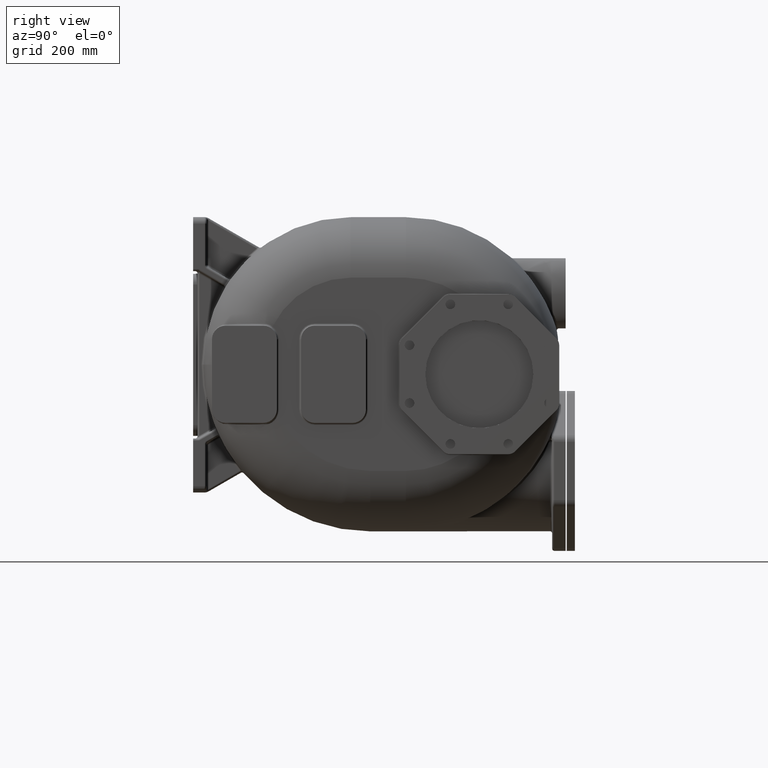
[diagram: clean part render]
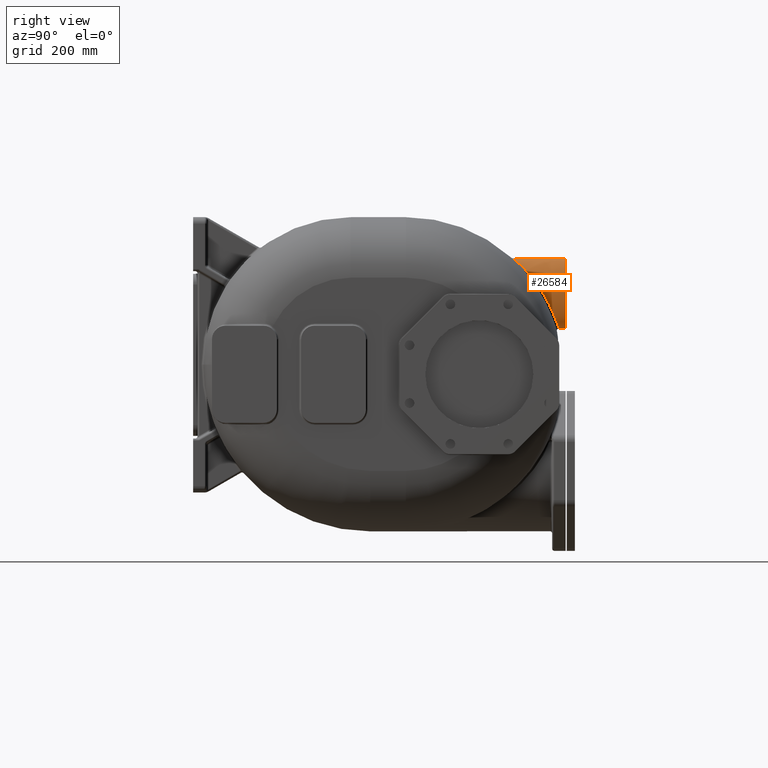
[diagram: same view with one face highlighted and labeled with its STEP entity id]
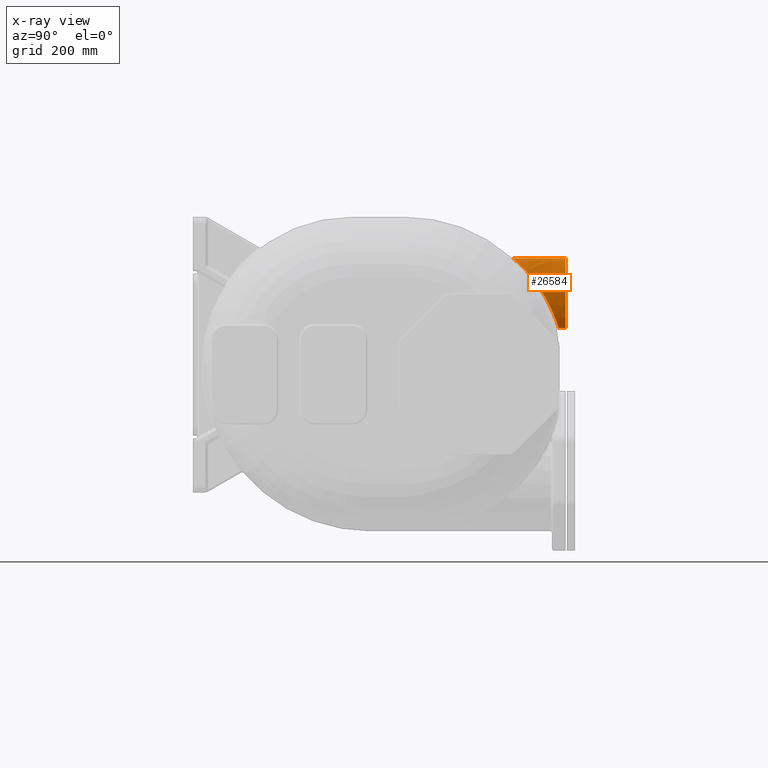
[diagram: x-ray of the same camera — body ghosted, the highlighted face saturated]
A machine part, right view. The second image highlights one B-rep face of the part: STEP entity #26584.
The next image is the same camera in x-ray: the body ghosted, the highlighted face saturated — about 0% of this face is hidden behind the body in this view.
In plain terms, the highlighted face is a SurfaceOfExtrusion surface.
Its self-contained STEP definition (entity closure, byte-faithful):
#6282=CARTESIAN_POINT('',(-5.E1,5.916461484573E2,1.79E2));
#6283=CARTESIAN_POINT('',(-4.990571273791E1,5.916462837173E2,1.789999647922E2));
#6284=CARTESIAN_POINT('',(-4.971701730871E1,5.916502673708E2,1.789980894169E2));
#6285=CARTESIAN_POINT('',(-4.943377895897E1,5.916624925480E2,1.789893849825E2));
#6286=CARTESIAN_POINT('',(-4.914990455443E1,5.916833913549E2,1.789748737566E2));
#6287=CARTESIAN_POINT('',(-4.886512752101E1,5.917123716773E2,1.789544562780E2));
#6288=CARTESIAN_POINT('',(-4.857915701108E1,5.917497232830E2,1.789280506253E2));
#6289=CARTESIAN_POINT('',(-4.829173066873E1,5.917955741219E2,1.788955405458E2));
#6290=CARTESIAN_POINT('',(-4.800263161878E1,5.918501564963E2,1.788567938878E2));
#6291=CARTESIAN_POINT('',(-4.771159619492E1,5.919137714649E2,1.788116564639E2));
#6292=CARTESIAN_POINT('',(-4.741713478509E1,5.919870594321E2,1.787597187068E2));
#6293=CARTESIAN_POINT('',(-4.711786523214E1,5.920706028898E2,1.787004547201E2));
#6294=CARTESIAN_POINT('',(-4.681247416151E1,5.921651730455E2,1.786332247347E2));
#6295=CARTESIAN_POINT('',(-4.650030078276E1,5.922714608112E2,1.785574245731E2));
#6296=CARTESIAN_POINT('',(-4.618084049427E1,5.923901802342E2,1.784724212794E2));
#6297=CARTESIAN_POINT('',(-4.585368907209E1,5.925220735724E2,1.783775463213E2));
#6298=CARTESIAN_POINT('',(-4.551853405633E1,5.926679034984E2,1.782721022961E2));
#6299=CARTESIAN_POINT('',(-4.517510727040E1,5.928284677718E2,1.781553531219E2));
#6300=CARTESIAN_POINT('',(-4.482327468989E1,5.930045517960E2,1.780265603864E2));
#6301=CARTESIAN_POINT('',(-4.446286686849E1,5.931969997030E2,1.778849333267E2));
#6302=CARTESIAN_POINT('',(-4.409348391735E1,5.934068974906E2,1.777295274850E2));
#6303=CARTESIAN_POINT('',(-4.371501330557E1,5.936351925336E2,1.775594605086E2));
#6304=CARTESIAN_POINT('',(-4.332613024958E1,5.938836265560E2,1.773732055069E2));
#6305=CARTESIAN_POINT('',(-4.292543875747E1,5.941541792571E2,1.771689806801E2));
#6306=CARTESIAN_POINT('',(-4.251184228156E1,5.944487909314E2,1.769449412690E2));
#6307=CARTESIAN_POINT('',(-4.208437053169E1,5.947694421579E2,1.766990961978E2));
#6308=CARTESIAN_POINT('',(-4.164290695417E1,5.951175281779E2,1.764297717692E2));
#6309=CARTESIAN_POINT('',(-4.118742591035E1,5.954942594304E2,1.761352444071E2));
#6310=CARTESIAN_POINT('',(-4.071814258638E1,5.959012827208E2,1.758138532702E2));
#6311=CARTESIAN_POINT('',(-4.023469497187E1,5.963406916841E2,1.754634332833E2));
#6312=CARTESIAN_POINT('',(-3.973636344056E1,5.968149919360E2,1.750813408204E2));
#6313=CARTESIAN_POINT('',(-3.922269402302E1,5.973264950006E2,1.746648744160E2));
#6314=CARTESIAN_POINT('',(-3.869352799123E1,5.978772221796E2,1.742113366256E2));
#6315=CARTESIAN_POINT('',(-3.814891254937E1,5.984687776472E2,1.737179928165E2));
#6316=CARTESIAN_POINT('',(-3.758906236896E1,5.991035037047E2,1.731820543215E2));
#6317=CARTESIAN_POINT('',(-3.701440152226E1,5.997834414920E2,1.726007474730E2));
#6318=CARTESIAN_POINT('',(-3.642528127160E1,6.005106707095E2,1.719710208506E2));
#6319=CARTESIAN_POINT('',(-3.582306455842E1,6.012857109218E2,1.712907420797E2));
#6320=CARTESIAN_POINT('',(-3.520978283656E1,6.021082496801E2,1.705586253624E2));
#6321=CARTESIAN_POINT('',(-3.458626548275E1,6.029798427901E2,1.697720197209E2));
#6322=CARTESIAN_POINT('',(-3.395287331186E1,6.039025028590E2,1.689274465488E2));
#6323=CARTESIAN_POINT('',(-3.331013041217E1,6.048778573100E2,1.680213202842E2));
#6324=CARTESIAN_POINT('',(-3.265891823350E1,6.059076440355E2,1.670502162959E2));
#6325=CARTESIAN_POINT('',(-3.200157898026E1,6.069912027341E2,1.660127869297E2));
#6326=CARTESIAN_POINT('',(-3.134015159865E1,6.081277738122E2,1.649073874935E2));
#6327=CARTESIAN_POINT('',(-3.067669566025E1,6.093167288323E2,1.637324612716E2));
#6328=CARTESIAN_POINT('',(-3.001375885394E1,6.105563552040E2,1.624874894688E2));
#6329=CARTESIAN_POINT('',(-2.935360592497E1,6.118448935895E2,1.611716888998E2));
#6330=CARTESIAN_POINT('',(-2.869871231770E1,6.131802640590E2,1.597849047401E2));
#6331=CARTESIAN_POINT('',(-2.805182802330E1,6.145592747840E2,1.583279643392E2));
#6332=CARTESIAN_POINT('',(-2.741540523555E1,6.159790213283E2,1.568014768200E2));
#6333=CARTESIAN_POINT('',(-2.679220950941E1,6.174356049357E2,1.552072916540E2));
#6334=CARTESIAN_POINT('',(-2.618473312298E1,6.189251586059E2,1.535472069064E2));
#6335=CARTESIAN_POINT('',(-2.559550497525E1,6.204434439246E2,1.518237531959E2));
#6336=CARTESIAN_POINT('',(-2.502687982936E1,6.219860356020E2,1.500397054482E2));
#6337=CARTESIAN_POINT('',(-2.448106770058E1,6.235485573466E2,1.481981452351E2));
#6338=CARTESIAN_POINT('',(-2.396012621654E1,6.251264714749E2,1.463024552784E2));
#6339=CARTESIAN_POINT('',(-2.346590772642E1,6.267154694559E2,1.443561104215E2));
#6340=CARTESIAN_POINT('',(-2.300010031443E1,6.283112368896E2,1.423627865965E2));
#6341=CARTESIAN_POINT('',(-2.256420129979E1,6.299096662458E2,1.403262254113E2));
#6342=CARTESIAN_POINT('',(-2.215951981001E1,6.315068888238E2,1.382501643482E2));
#6343=CARTESIAN_POINT('',(-2.178721461795E1,6.330991172706E2,1.361384648286E2));
#6344=CARTESIAN_POINT('',(-2.144826613089E1,6.346829223927E2,1.339949089002E2));
#6345=CARTESIAN_POINT('',(-2.114350300163E1,6.362550548931E2,1.318232354895E2));
#6346=CARTESIAN_POINT('',(-2.087363453505E1,6.378124002415E2,1.296273240644E2));
#6347=CARTESIAN_POINT('',(-2.063921589226E1,6.393522039177E2,1.274108772495E2));
#6348=CARTESIAN_POINT('',(-2.044068920960E1,6.408718274987E2,1.251776298656E2));
#6349=CARTESIAN_POINT('',(-2.027838928341E1,6.423687682103E2,1.229314579350E2));
#6350=CARTESIAN_POINT('',(-2.015251724774E1,6.438409054403E2,1.206759687307E2));
#6351=CARTESIAN_POINT('',(-2.006317668448E1,6.452862353476E2,1.184147826088E2));
#6352=CARTESIAN_POINT('',(-2.001037304800E1,6.467028504009E2,1.161516552268E2));
#6353=CARTESIAN_POINT('',(-1.999400345505E1,6.480891067603E2,1.138902398381E2));
#6354=CARTESIAN_POINT('',(-2.001386562825E1,6.494434991723E2,1.116341483104E2));
#6355=CARTESIAN_POINT('',(-2.006965246607E1,6.507645880322E2,1.093871335345E2));
#6356=CARTESIAN_POINT('',(-2.016094909924E1,6.520511669617E2,1.071528563947E2));
#6357=CARTESIAN_POINT('',(-2.028723770752E1,6.533021614855E2,1.049349166681E2));
#6358=CARTESIAN_POINT('',(-2.044787964406E1,6.545165568143E2,1.027370563344E2));
#6359=CARTESIAN_POINT('',(-2.064213322209E1,6.556935874686E2,1.005628117249E2));
#6360=CARTESIAN_POINT('',(-2.086913525489E1,6.568325338311E2,9.841578203148E1));
#6361=CARTESIAN_POINT('',(-2.112790193791E1,6.579328393147E2,9.629950837566E1));
#6362=CARTESIAN_POINT('',(-2.141734413459E1,6.589941054676E2,9.421736481708E1));
#6363=CARTESIAN_POINT('',(-2.173623144038E1,6.600159919565E2,9.217278949430E1));
#6364=CARTESIAN_POINT('',(-2.208325610961E1,6.609984113307E2,9.016885598528E1));
#6365=CARTESIAN_POINT('',(-2.245695504341E1,6.619412685156E2,8.820875544367E1));
#6366=CARTESIAN_POINT('',(-2.285582444688E1,6.628447729671E2,8.629516779178E1));
#6367=CARTESIAN_POINT('',(-2.327820251529E1,6.637090916362E2,8.443089355967E1));
#6368=CARTESIAN_POINT('',(-2.372242721610E1,6.645347113798E2,8.261812699888E1));
#6369=CARTESIAN_POINT('',(-2.418673191859E1,6.653221298767E2,8.085900365984E1));
#6370=CARTESIAN_POINT('',(-2.466930624925E1,6.660719957160E2,7.915533434759E1));
#6371=CARTESIAN_POINT('',(-2.516840139211E1,6.667851908709E2,7.750834456554E1));
#6372=CARTESIAN_POINT('',(-2.568210070936E1,6.674624617849E2,7.591947144526E1));
#6373=CARTESIAN_POINT('',(-2.620868857848E1,6.681049295314E2,7.438921498388E1));
#6374=CARTESIAN_POINT('',(-2.674641236900E1,6.687136742875E2,7.291801651682E1));
#6375=CARTESIAN_POINT('',(-2.729345916432E1,6.692897328472E2,7.150626530630E1));
#6376=CARTESIAN_POINT('',(-2.784829279899E1,6.698344411799E2,7.015349409531E1));
#6377=CARTESIAN_POINT('',(-2.840932220760E1,6.703490186246E2,6.885932734793E1));
#6378=CARTESIAN_POINT('',(-2.897495764678E1,6.708346393619E2,6.762329033228E1));
#6379=CARTESIAN_POINT('',(-2.954389986861E1,6.712926832362E2,6.644424043789E1));
#6380=CARTESIAN_POINT('',(-3.011484335091E1,6.717244322467E2,6.532109002641E1));
#6381=CARTESIAN_POINT('',(-3.068647532397E1,6.721310656704E2,6.425276416902E1));
#6382=CARTESIAN_POINT('',(-3.125778912395E1,6.725139143545E2,6.323765032836E1));
#6383=CARTESIAN_POINT('',(-3.182784030326E1,6.728742507512E2,6.227412677268E1));
#6384=CARTESIAN_POINT('',(-3.239569037517E1,6.732132233864E2,6.136064100045E1));
#6385=CARTESIAN_POINT('',(-3.296054173653E1,6.735319837199E2,6.049549142185E1));
#6386=CARTESIAN_POINT('',(-3.352172125380E1,6.738316678498E2,5.967688757239E1));
#6387=CARTESIAN_POINT('',(-3.407862180932E1,6.741133475001E2,5.890305292822E1));
#6388=CARTESIAN_POINT('',(-3.463066497333E1,6.743779958777E2,5.817227155930E1));
#6389=CARTESIAN_POINT('',(-3.517744200910E1,6.746266016179E2,5.748270676778E1));
#6390=CARTESIAN_POINT('',(-3.571863944017E1,6.748601182039E2,5.683252581602E1));
#6391=CARTESIAN_POINT('',(-3.625401167515E1,6.750794214225E2,5.621993711716E1));
#6392=CARTESIAN_POINT('',(-3.678338109858E1,6.752853342572E2,5.564319517996E1));
#6393=CARTESIAN_POINT('',(-3.730661196548E1,6.754786315407E2,5.510061858852E1));
#6394=CARTESIAN_POINT('',(-3.765155011317E1,6.755996689461E2,5.476034706222E1));
#6395=CARTESIAN_POINT('',(-3.782290821989E1,6.756582914573E2,5.459545106115E1));
#6397=DIRECTION('',(-1.380054747527E-9,-9.999999999968E-1,-2.533470245037E-6));
#6398=VECTOR('',#6397,9.835385159798E1);
#6399=CARTESIAN_POINT('',(-5.E1,6.9E2,1.79E2));
#6400=LINE('',#6399,#6398);
#6401=CARTESIAN_POINT('',(-3.782291640786E1,6.756582914578E2,5.459545956842E1));
#6402=CARTESIAN_POINT('',(-3.798636764819E1,6.757142084789E2,5.443816228762E1));
#6403=CARTESIAN_POINT('',(-3.831193652052E1,6.758218982325E2,5.413244472207E1));
#6404=CARTESIAN_POINT('',(-3.879554802308E1,6.759723777294E2,5.370006946233E1));
#6405=CARTESIAN_POINT('',(-3.927446751250E1,6.761122002218E2,5.329273213970E1));
#6406=CARTESIAN_POINT('',(-3.974862596483E1,6.762421369028E2,5.290947712542E1));
#6407=CARTESIAN_POINT('',(-4.021810600493E1,6.763627991945E2,5.254927126247E1));
#6408=CARTESIAN_POINT('',(-4.068302084976E1,6.764748158270E2,5.221113123230E1));
#6409=CARTESIAN_POINT('',(-4.114355294034E1,6.765787907230E2,5.189409365993E1));
#6410=CARTESIAN_POINT('',(-4.159971797725E1,6.766752091351E2,5.159737565338E1));
#6411=CARTESIAN_POINT('',(-4.205127522945E1,6.767644588619E2,5.132038519676E1));
#6412=CARTESIAN_POINT('',(-4.249809261286E1,6.768469151640E2,5.106246927318E1));
#6413=CARTESIAN_POINT('',(-4.294010291079E1,6.769229328806E2,5.082295474690E1));
#6414=CARTESIAN_POINT('',(-4.337761201609E1,6.769928950285E2,5.060100867791E1));
#6415=CARTESIAN_POINT('',(-4.381097988128E1,6.770571472605E2,5.039584618673E1));
#6416=CARTESIAN_POINT('',(-4.424071003215E1,6.771160237170E2,5.020669588187E1));
#6417=CARTESIAN_POINT('',(-4.466711731396E1,6.771698389021E2,5.003295198722E1));
#6418=CARTESIAN_POINT('',(-4.509028615081E1,6.772188119747E2,4.987414843407E1));
#6419=CARTESIAN_POINT('',(-4.551040870875E1,6.772631558953E2,4.972980995714E1));
#6420=CARTESIAN_POINT('',(-4.592771148921E1,6.773030575547E2,4.959949284715E1));
#6421=CARTESIAN_POINT('',(-4.634236368857E1,6.773386752933E2,4.948281052943E1));
#6422=CARTESIAN_POINT('',(-4.675457891153E1,6.773701506296E2,4.937939876573E1));
#6423=CARTESIAN_POINT('',(-4.716461806041E1,6.773976108724E2,4.928892131858E1));
#6424=CARTESIAN_POINT('',(-4.757277421004E1,6.774211603869E2,4.921107865397E1));
#6425=CARTESIAN_POINT('',(-4.797934819765E1,6.774409106493E2,4.914561359599E1));
#6426=CARTESIAN_POINT('',(-4.838464929234E1,6.774569664791E2,4.909231609814E1));
#6427=CARTESIAN_POINT('',(-4.878900352412E1,6.774693936526E2,4.905100390352E1));
#6428=CARTESIAN_POINT('',(-4.919276855220E1,6.774782645093E2,4.902159377485E1));
#6429=CARTESIAN_POINT('',(-4.959625535845E1,6.774835416071E2,4.900384768728E1));
#6430=CARTESIAN_POINT('',(-4.986542023716E1,6.774848450644E2,4.900016806566E1));
#6431=CARTESIAN_POINT('',(-4.999999996887E1,6.774848559991E2,4.900014539189E1));
#6546=CARTESIAN_POINT('',(-5.E1,5.916461484573E2,1.79E2));
#6580=DIRECTION('',(2.486997567839E-9,-9.999999999325E-1,1.161727661791E-5));
#6581=VECTOR('',#6580,1.251514400172E1);
#6582=CARTESIAN_POINT('',(-5.E1,6.9E2,4.9E1));
#6583=LINE('',#6582,#6581);
#6584=CARTESIAN_POINT('',(-5.E1,6.9E2,4.9E1));
#6630=CARTESIAN_POINT('',(-5.E1,6.9E2,1.79E2));
#6632=CARTESIAN_POINT('',(-5.E1,6.9E2,1.79E2));
#6633=CARTESIAN_POINT('',(-4.911611652352E1,6.9E2,1.79E2));
#6634=CARTESIAN_POINT('',(-4.731580987356E1,6.9E2,1.788305457399E2));
#6635=CARTESIAN_POINT('',(-4.454669183567E1,6.9E2,1.780155042695E2));
#6636=CARTESIAN_POINT('',(-4.174407334957E1,6.9E2,1.765965308646E2));
#6637=CARTESIAN_POINT('',(-3.894853609390E1,6.9E2,1.745439659650E2));
#6638=CARTESIAN_POINT('',(-3.620473455370E1,6.9E2,1.718450426898E2));
#6639=CARTESIAN_POINT('',(-3.355949894121E1,6.9E2,1.685066259393E2));
#6640=CARTESIAN_POINT('',(-3.105951407211E1,6.9E2,1.645567029281E2));
#6641=CARTESIAN_POINT('',(-2.874878201847E1,6.9E2,1.600443055024E2));
#6642=CARTESIAN_POINT('',(-2.666613724042E1,6.9E2,1.550377197252E2));
#6643=CARTESIAN_POINT('',(-2.484309525637E1,6.9E2,1.496210848926E2));
#6644=CARTESIAN_POINT('',(-2.330228971476E1,6.9E2,1.438897445247E2));
#6645=CARTESIAN_POINT('',(-2.205662465524E1,6.9E2,1.379448283005E2));
#6646=CARTESIAN_POINT('',(-2.126720200340E1,6.9E2,1.328973705520E2));
#6647=CARTESIAN_POINT('',(-2.078180522600E1,6.9E2,1.288516192411E2));
#6648=CARTESIAN_POINT('',(-2.048924009925E1,6.9E2,1.258246036497E2));
#6649=CARTESIAN_POINT('',(-2.026626806201E1,6.9E2,1.228155566006E2));
#6650=CARTESIAN_POINT('',(-2.013652702068E1,6.9E2,1.203312367174E2));
#6651=CARTESIAN_POINT('',(-2.006505597521E1,6.9E2,1.183622779785E2));
#6652=CARTESIAN_POINT('',(-2.002725391379E1,6.9E2,1.168958044150E2));
#6653=CARTESIAN_POINT('',(-2.000861162112E1,6.9E2,1.156833003855E2));
#6654=CARTESIAN_POINT('',(-2.000122072680E1,6.9E2,1.147191074567E2));
#6655=CARTESIAN_POINT('',(-1.999938963660E1,6.9E2,1.14E2));
#6656=CARTESIAN_POINT('',(-2.000122072680E1,6.9E2,1.132808925433E2));
#6657=CARTESIAN_POINT('',(-2.000861162112E1,6.9E2,1.123166996145E2));
#6658=CARTESIAN_POINT('',(-2.002725391379E1,6.9E2,1.111041955850E2));
#6659=CARTESIAN_POINT('',(-2.006505597521E1,6.9E2,1.096377220215E2));
#6660=CARTESIAN_POINT('',(-2.013652702068E1,6.9E2,1.076687632826E2));
#6661=CARTESIAN_POINT('',(-2.026626806201E1,6.9E2,1.051844433994E2));
#6662=CARTESIAN_POINT('',(-2.048924009925E1,6.9E2,1.021753963503E2));
#6663=CARTESIAN_POINT('',(-2.078180522600E1,6.9E2,9.914838075888E1));
#6664=CARTESIAN_POINT('',(-2.126720200340E1,6.9E2,9.510262944799E1));
#6665=CARTESIAN_POINT('',(-2.205662465524E1,6.9E2,9.005517169946E1));
#6666=CARTESIAN_POINT('',(-2.330228971476E1,6.9E2,8.411025547532E1));
#6667=CARTESIAN_POINT('',(-2.484309525637E1,6.9E2,7.837891510742E1));
#6668=CARTESIAN_POINT('',(-2.666613724042E1,6.9E2,7.296228027481E1));
#6669=CARTESIAN_POINT('',(-2.874878201847E1,6.9E2,6.795569449764E1));
#6670=CARTESIAN_POINT('',(-3.105951407211E1,6.9E2,6.344329707188E1));
#6671=CARTESIAN_POINT('',(-3.355949894121E1,6.9E2,5.949337406067E1));
#6672=CARTESIAN_POINT('',(-3.620473455370E1,6.9E2,5.615495731018E1));
#6673=CARTESIAN_POINT('',(-3.894853609390E1,6.9E2,5.345603403502E1));
#6674=CARTESIAN_POINT('',(-4.174407334957E1,6.9E2,5.140346913538E1));
#6675=CARTESIAN_POINT('',(-4.454669183567E1,6.9E2,4.998449573050E1));
#6676=CARTESIAN_POINT('',(-4.731580987356E1,6.9E2,4.916945426014E1));
#6677=CARTESIAN_POINT('',(-4.911611652352E1,6.9E2,4.9E1));
#6678=CARTESIAN_POINT('',(-5.E1,6.9E2,4.9E1));
#20002=VERTEX_POINT('',#6584);
#20003=VERTEX_POINT('',#6630);
#20007=VERTEX_POINT('',#6546);
#20009=VERTEX_POINT('',#6395);
#20010=CARTESIAN_POINT('',(-4.999999996887E1,6.774848559991E2,
4.900014539189E1));
#20011=VERTEX_POINT('',#20010);
#26566=CARTESIAN_POINT('',(-5.E1,6.9E2,1.14E2));
#26567=DIRECTION('',(0.E0,1.E0,0.E0));
#26568=DIRECTION('',(0.E0,0.E0,-1.E0));
#26569=AXIS2_PLACEMENT_3D('',#26566,#26567,#26568);
#26571=DIRECTION('',(0.E0,1.E0,0.E0));
#26572=VECTOR('',#26571,1.E0);
#26573=SURFACE_OF_LINEAR_EXTRUSION('',#26570,#26572);
#26574=ORIENTED_EDGE('',*,*,#26560,.F.);
#26576=ORIENTED_EDGE('',*,*,#26575,.F.);
#26578=ORIENTED_EDGE('',*,*,#26577,.T.);
#26580=ORIENTED_EDGE('',*,*,#26579,.T.);
#26581=ORIENTED_EDGE('',*,*,#26403,.F.);
#26582=EDGE_LOOP('',(#26574,#26576,#26578,#26580,#26581));
#26583=FACE_OUTER_BOUND('',#26582,.F.);
#26584=ADVANCED_FACE('',(#26583),#26573,.T.);
#6396=B_SPLINE_CURVE_WITH_KNOTS('',3,(#6282,#6283,#6284,#6285,#6286,#6287,#6288,
#6289,#6290,#6291,#6292,#6293,#6294,#6295,#6296,#6297,#6298,#6299,#6300,#6301,
#6302,#6303,#6304,#6305,#6306,#6307,#6308,#6309,#6310,#6311,#6312,#6313,#6314,
#6315,#6316,#6317,#6318,#6319,#6320,#6321,#6322,#6323,#6324,#6325,#6326,#6327,
#6328,#6329,#6330,#6331,#6332,#6333,#6334,#6335,#6336,#6337,#6338,#6339,#6340,
#6341,#6342,#6343,#6344,#6345,#6346,#6347,#6348,#6349,#6350,#6351,#6352,#6353,
#6354,#6355,#6356,#6357,#6358,#6359,#6360,#6361,#6362,#6363,#6364,#6365,#6366,
#6367,#6368,#6369,#6370,#6371,#6372,#6373,#6374,#6375,#6376,#6377,#6378,#6379,
#6380,#6381,#6382,#6383,#6384,#6385,#6386,#6387,#6388,#6389,#6390,#6391,#6392,
#6393,#6394,#6395),.UNSPECIFIED.,.F.,.F.,(4,1,1,1,1,1,1,1,1,1,1,1,1,1,1,1,1,1,1,
1,1,1,1,1,1,1,1,1,1,1,1,1,1,1,1,1,1,1,1,1,1,1,1,1,1,1,1,1,1,1,1,1,1,1,1,1,1,1,1,
1,1,1,1,1,1,1,1,1,1,1,1,1,1,1,1,1,1,1,1,1,1,1,1,1,1,1,1,1,1,1,1,1,1,1,1,1,1,1,1,
1,1,1,1,1,1,1,1,1,1,1,1,4),(0.E0,9.009009009009E-3,1.801801801802E-2,
2.702702702703E-2,3.603603603604E-2,4.504504504505E-2,5.405405405405E-2,
6.306306306306E-2,7.207207207207E-2,8.108108108108E-2,9.009009009009E-2,
9.909909909910E-2,1.081081081081E-1,1.171171171171E-1,1.261261261261E-1,
1.351351351351E-1,1.441441441441E-1,1.531531531532E-1,1.621621621622E-1,
1.711711711712E-1,1.801801801802E-1,1.891891891892E-1,1.981981981982E-1,
2.072072072072E-1,2.162162162162E-1,2.252252252252E-1,2.342342342342E-1,
2.432432432432E-1,2.522522522523E-1,2.612612612613E-1,2.702702702703E-1,
2.792792792793E-1,2.882882882883E-1,2.972972972973E-1,3.063063063063E-1,
3.153153153153E-1,3.243243243243E-1,3.333333333333E-1,3.423423423423E-1,
3.513513513514E-1,3.603603603604E-1,3.693693693694E-1,3.783783783784E-1,
3.873873873874E-1,3.963963963964E-1,4.054054054054E-1,4.144144144144E-1,
4.234234234234E-1,4.324324324324E-1,4.414414414414E-1,4.504504504505E-1,
4.594594594595E-1,4.684684684685E-1,4.774774774775E-1,4.864864864865E-1,
4.954954954955E-1,5.045045045045E-1,5.135135135135E-1,5.225225225225E-1,
5.315315315315E-1,5.405405405405E-1,5.495495495495E-1,5.585585585586E-1,
5.675675675676E-1,5.765765765766E-1,5.855855855856E-1,5.945945945946E-1,
6.036036036036E-1,6.126126126126E-1,6.216216216216E-1,6.306306306306E-1,
6.396396396396E-1,6.486486486486E-1,6.576576576577E-1,6.666666666667E-1,
6.756756756757E-1,6.846846846847E-1,6.936936936937E-1,7.027027027027E-1,
7.117117117117E-1,7.207207207207E-1,7.297297297297E-1,7.387387387387E-1,
7.477477477477E-1,7.567567567568E-1,7.657657657658E-1,7.747747747748E-1,
7.837837837838E-1,7.927927927928E-1,8.018018018018E-1,8.108108108108E-1,
8.198198198198E-1,8.288288288288E-1,8.378378378378E-1,8.468468468468E-1,
8.558558558559E-1,8.648648648649E-1,8.738738738739E-1,8.828828828829E-1,
8.918918918919E-1,9.009009009009E-1,9.099099099099E-1,9.189189189189E-1,
9.279279279279E-1,9.369369369369E-1,9.459459459459E-1,9.549549549550E-1,
9.639639639640E-1,9.729729729730E-1,9.819819819820E-1,9.909909909910E-1,1.E0),
.UNSPECIFIED.);
#6432=B_SPLINE_CURVE_WITH_KNOTS('',3,(#6401,#6402,#6403,#6404,#6405,#6406,#6407,
#6408,#6409,#6410,#6411,#6412,#6413,#6414,#6415,#6416,#6417,#6418,#6419,#6420,
#6421,#6422,#6423,#6424,#6425,#6426,#6427,#6428,#6429,#6430,#6431),
.UNSPECIFIED.,.F.,.F.,(4,1,1,1,1,1,1,1,1,1,1,1,1,1,1,1,1,1,1,1,1,1,1,1,1,1,1,1,
4),(0.E0,3.571428571429E-2,7.142857142857E-2,1.071428571429E-1,
1.428571428571E-1,1.785714285714E-1,2.142857142857E-1,2.5E-1,2.857142857143E-1,
3.214285714286E-1,3.571428571429E-1,3.928571428571E-1,4.285714285714E-1,
4.642857142857E-1,5.E-1,5.357142857143E-1,5.714285714286E-1,6.071428571429E-1,
6.428571428571E-1,6.785714285714E-1,7.142857142857E-1,7.5E-1,7.857142857143E-1,
8.214285714286E-1,8.571428571429E-1,8.928571428571E-1,9.285714285714E-1,
9.642857142857E-1,1.E0),.UNSPECIFIED.);
#6679=B_SPLINE_CURVE_WITH_KNOTS('',3,(#6632,#6633,#6634,#6635,#6636,#6637,#6638,
#6639,#6640,#6641,#6642,#6643,#6644,#6645,#6646,#6647,#6648,#6649,#6650,#6651,
#6652,#6653,#6654,#6655,#6656,#6657,#6658,#6659,#6660,#6661,#6662,#6663,#6664,
#6665,#6666,#6667,#6668,#6669,#6670,#6671,#6672,#6673,#6674,#6675,#6676,#6677,
#6678),.UNSPECIFIED.,.F.,.F.,(4,1,1,1,1,1,1,1,1,1,1,1,1,1,1,1,1,1,1,1,1,1,1,1,1,
1,1,1,1,1,1,1,1,1,1,1,1,1,1,1,1,1,1,1,4),(0.E0,3.125E-2,6.25E-2,9.375E-2,
1.25E-1,1.5625E-1,1.875E-1,2.1875E-1,2.5E-1,2.8125E-1,3.125E-1,3.4375E-1,
3.75E-1,4.0625E-1,4.21875E-1,4.375E-1,4.53125E-1,4.6875E-1,4.765625E-1,
4.84375E-1,4.921875E-1,4.9609375E-1,5.E-1,5.0390625E-1,5.078125E-1,5.15625E-1,
5.234375E-1,5.3125E-1,5.46875E-1,5.625E-1,5.78125E-1,5.9375E-1,6.25E-1,
6.5625E-1,6.875E-1,7.1875E-1,7.5E-1,7.8125E-1,8.125E-1,8.4375E-1,8.75E-1,
9.0625E-1,9.375E-1,9.6875E-1,1.E0),.UNSPECIFIED.);
#26403=EDGE_CURVE('',#20009,#20011,#6432,.T.);
#26560=EDGE_CURVE('',#20007,#20009,#6396,.T.);
#26570=ELLIPSE('',#26569,6.5E1,3.E1);
#26575=EDGE_CURVE('',#20003,#20007,#6400,.T.);
#26577=EDGE_CURVE('',#20003,#20002,#6679,.T.);
#26579=EDGE_CURVE('',#20002,#20011,#6583,.T.);